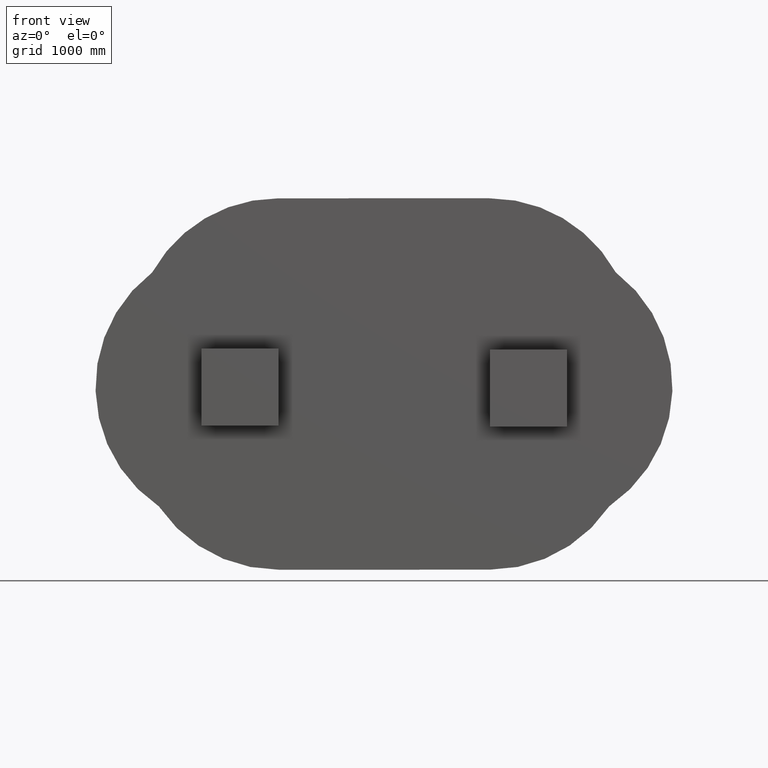
[diagram: clean part render]
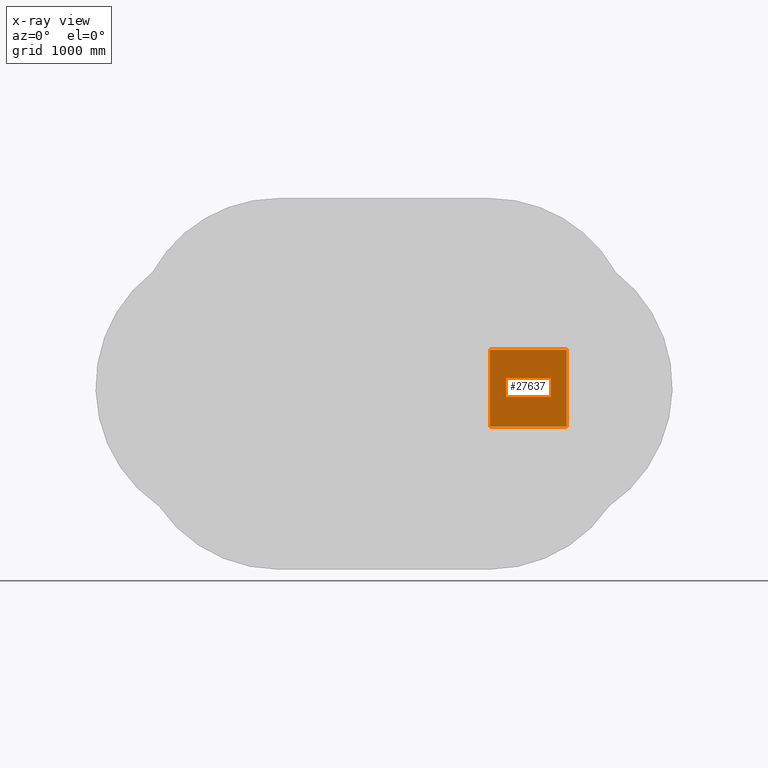
[diagram: x-ray — body ghosted, one internal face saturated and labeled with its STEP entity id]
A machine part, front view, then the same camera in x-ray: the body is ghosted and one INTERNAL B-rep face — a face not visible from any outside direction — is saturated and labeled: STEP entity #27637.
In plain terms, the highlighted planar face has unit normal (0, -1, -0).
Its self-contained STEP definition (entity closure, byte-faithful):
#430 = VECTOR ( 'NONE', #8706, 1.000000000000000000 ) ;
#435 = ORIENTED_EDGE ( 'NONE', *, *, #9928, .F. ) ;
#1341 = ORIENTED_EDGE ( 'NONE', *, *, #9989, .F. ) ;
#2923 = FACE_OUTER_BOUND ( 'NONE', #18603, .T. ) ;
#3070 = DIRECTION ( 'NONE',  ( -0.0000000000000000000, -1.214306433183765000E-016, 1.000000000000000000 ) ) ;
#3087 = DIRECTION ( 'NONE',  ( 0.0000000000000000000, -1.000000000000000000, -1.214306433183765000E-016 ) ) ;
#3420 = VECTOR ( 'NONE', #33403, 1.000000000000000000 ) ;
#4356 = CARTESIAN_POINT ( 'NONE',  ( 0.8000000000000000400, 0.1000000000000000100, 0.0000000000000000000 ) ) ;
#7331 = VERTEX_POINT ( 'NONE', #13923 ) ;
#7822 = CARTESIAN_POINT ( 'NONE',  ( 0.8000000000000000400, 0.1000000000000000100, 0.0000000000000000000 ) ) ;
#8706 = DIRECTION ( 'NONE',  ( 1.000000000000000000, 0.0000000000000000000, 0.0000000000000000000 ) ) ;
#8940 = CARTESIAN_POINT ( 'NONE',  ( 0.8000000000000000400, 0.1000000000000000100, 0.0000000000000000000 ) ) ;
#9928 = EDGE_CURVE ( 'NONE', #21103, #20466, #22124, .T. ) ;
#9989 = EDGE_CURVE ( 'NONE', #20466, #29139, #27285, .T. ) ;
#9995 = EDGE_CURVE ( 'NONE', #29139, #7331, #24095, .T. ) ;
#10035 = EDGE_CURVE ( 'NONE', #7331, #21103, #28460, .T. ) ;
#13291 = VECTOR ( 'NONE', #3070, 1.000000000000000000 ) ;
#13923 = CARTESIAN_POINT ( 'NONE',  ( 0.0000000000000000000, 0.09999999999999993600, 0.8000000000000000400 ) ) ;
#14028 = ORIENTED_EDGE ( 'NONE', *, *, #9995, .F. ) ;
#16739 = CARTESIAN_POINT ( 'NONE',  ( 0.8000000000000000400, 0.09999999999999996400, 0.8000000000000000400 ) ) ;
#17518 = CARTESIAN_POINT ( 'NONE',  ( 0.0000000000000000000, 0.1000000000000000100, 0.0000000000000000000 ) ) ;
#18603 = EDGE_LOOP ( 'NONE', ( #14028, #1341, #435, #30411 ) ) ;
#19371 = CARTESIAN_POINT ( 'NONE',  ( 0.8000000000000000400, 0.1000000000000000100, 0.0000000000000000000 ) ) ;
#20466 = VERTEX_POINT ( 'NONE', #7822 ) ;
#21103 = VERTEX_POINT ( 'NONE', #24633 ) ;
#21689 = VECTOR ( 'NONE', #32418, 1.000000000000000000 ) ;
#22072 = DIRECTION ( 'NONE',  ( 0.0000000000000000000, 1.214306433183765000E-016, -1.000000000000000000 ) ) ;
#22124 = LINE ( 'NONE', #8940, #430 ) ;
#22360 = AXIS2_PLACEMENT_3D ( 'NONE', #19371, #3087, #22072 ) ;
#24095 = LINE ( 'NONE', #33514, #3420 ) ;
#24191 = PLANE ( 'NONE',  #22360 ) ;
#24633 = CARTESIAN_POINT ( 'NONE',  ( 0.0000000000000000000, 0.1000000000000000100, 0.0000000000000000000 ) ) ;
#27285 = LINE ( 'NONE', #4356, #13291 ) ;
#27637 = ADVANCED_FACE ( 'NONE', ( #2923 ), #24191, .F. ) ;
#28460 = LINE ( 'NONE', #17518, #21689 ) ;
#29139 = VERTEX_POINT ( 'NONE', #16739 ) ;
#30411 = ORIENTED_EDGE ( 'NONE', *, *, #10035, .F. ) ;
#32418 = DIRECTION ( 'NONE',  ( 0.0000000000000000000, 1.214306433183765000E-016, -1.000000000000000000 ) ) ;
#33403 = DIRECTION ( 'NONE',  ( -1.000000000000000000, -0.0000000000000000000, -0.0000000000000000000 ) ) ;
#33514 = CARTESIAN_POINT ( 'NONE',  ( 0.8000000000000000400, 0.09999999999999990800, 0.8000000000000000400 ) ) ;